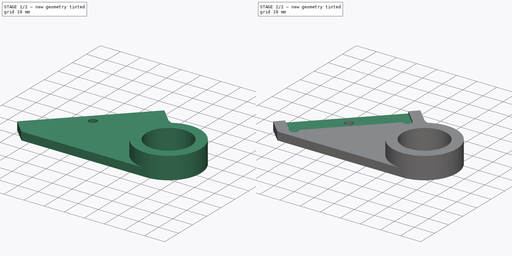
[diagram: build sequence overview — one tinted view per stage of 2, left to right]
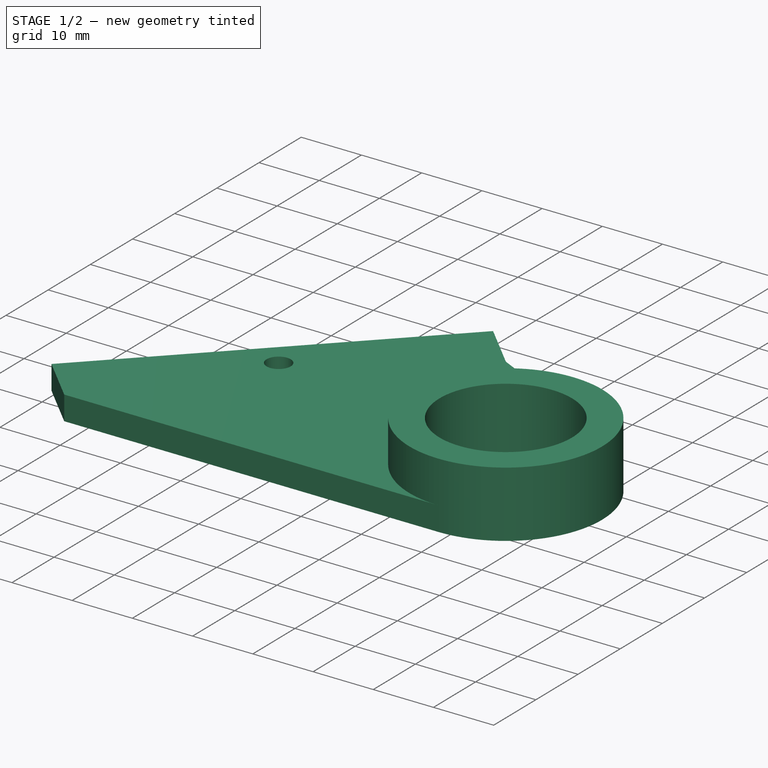
[diagram: stage 1 of 2 — iso view after this stage's code; geometry added in this stage tinted green]
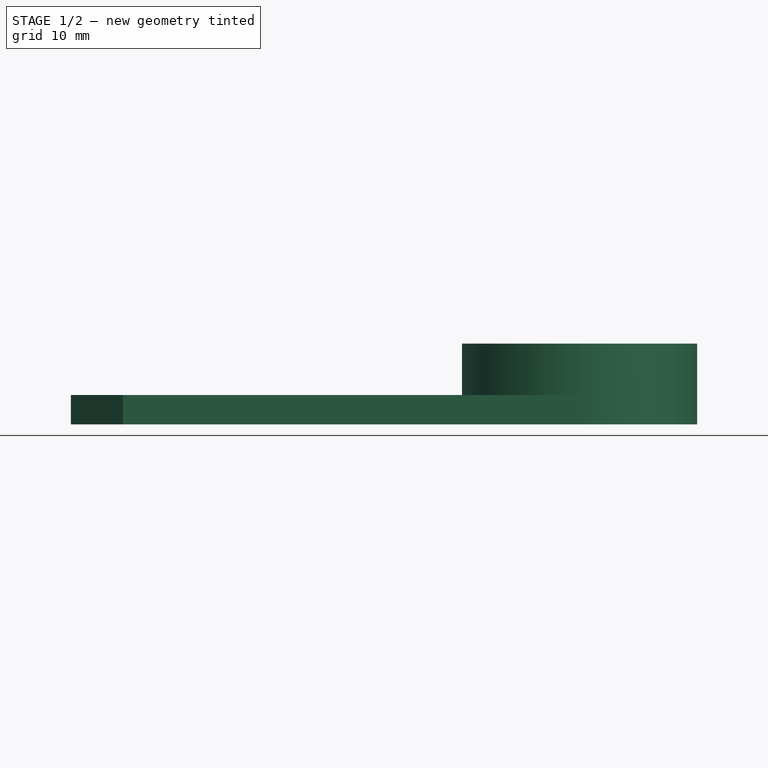
[diagram: stage 1 of 2 — front view after this stage's code; geometry added in this stage tinted green]
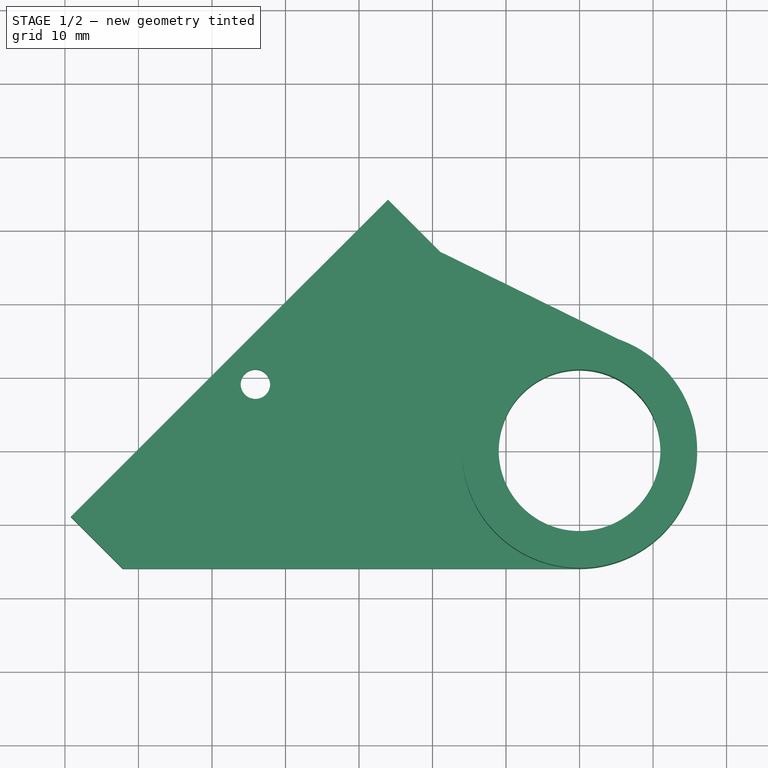
[diagram: stage 1 of 2 — top view after this stage's code; geometry added in this stage tinted green]
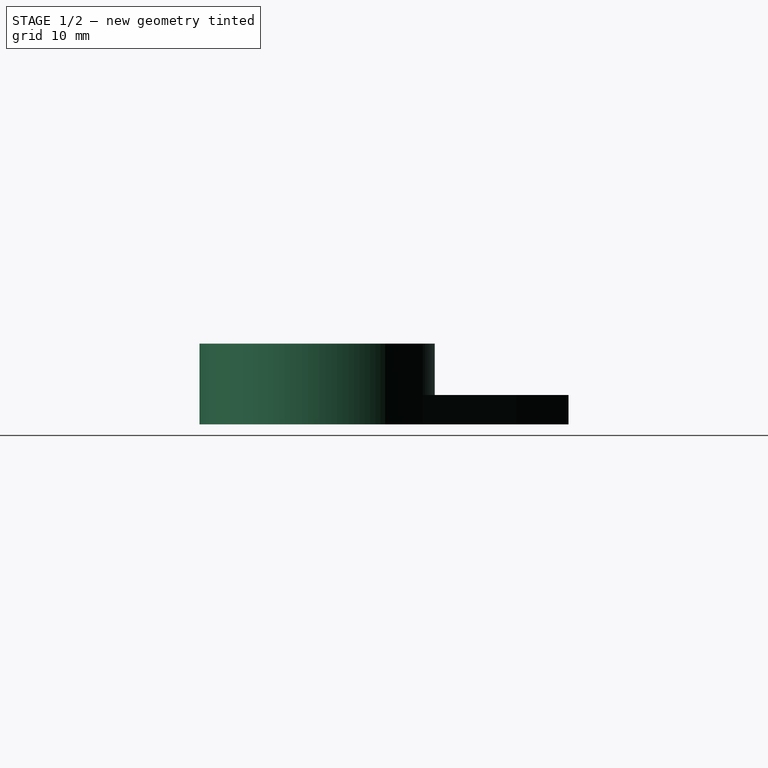
[diagram: stage 1 of 2 — right view after this stage's code; geometry added in this stage tinted green]
FCSTD DOCUMENT  (FreeCAD 0.16R6712 (Git))
Label: aiming-shutter
License: All rights reserved
LicenseURL: http://en.wikipedia.org/wiki/All_rights_reserved
objects: Sketcher::SketchObject×3, PartDesign::Pocket×2, Path::FeaturePython×2, PartDesign::Pad×1
note: 9 computed .brp shape members not serialized (recipe doc carries the construction recipe); baked Part::Feature solids carry a one-line shape summary decoded from their .brp

FEATURE [Sketcher::SketchObject] Sketch  label="mirror-base"
  sketch-geometry (12):
    g0: LineSegment StartX=5e-12 StartY=-16 StartZ=0 EndX=-62.1229 EndY=-16 EndZ=0
    g1: LineSegment StartX=-62.1229 StartY=-16 StartZ=0 EndX=-69.1939 EndY=-8.92893 EndZ=0
    g2: LineSegment StartX=-69.1939 StartY=-8.92893 StartZ=0 EndX=-26.0604 EndY=34.2046 EndZ=0
    g3: LineSegment StartX=-26.0604 StartY=34.2046 StartZ=0 EndX=-18.9894 EndY=27.1335 EndZ=0
    g4: LineSegment StartX=-18.9894 StartY=27.1335 StartZ=0 EndX=7.04521 EndY=14.3654 EndZ=0
    g5: ArcOfCircle CenterX=0 CenterY=0 CenterZ=0 NormalX=0 NormalY=0 NormalZ=1 Radius=16 StartAngle=4.71239 EndAngle=7.39802
    g6: Circle CenterX=0 CenterY=0 CenterZ=0 NormalX=0 NormalY=0 NormalZ=1 Radius=11
    g7: Circle CenterX=-44.0917 CenterY=9.10229 CenterZ=0 NormalX=0 NormalY=0 NormalZ=1 Radius=2
    g8: LineSegment [constr] StartX=-61.734 StartY=8.78409 StartZ=0 EndX=-43.7735 EndY=26.7446 EndZ=0
    g9: LineSegment [constr] StartX=-44.0917 StartY=9.10229 StartZ=0 EndX=-52.7537 EndY=17.7643 EndZ=0
    g10: LineSegment [constr] StartX=-150 StartY=17.6138 StartZ=0 EndX=50 EndY=17.6138 EndZ=0
    g11: LineSegment [constr] StartX=20.7745 StartY=45.6842 StartZ=0 EndX=-64.0783 EndY=-39.1686 EndZ=0
  constraints (38):
    c: Horizontal(g0)
    c: Coincident(g0,g1)
    c: Coincident(g1,g2)
    c: Coincident(g2,g3)
    c: Coincident(g3,g4)
    c: Coincident(g5,g4)
    c: Coincident(g5,g0)
    c: Tangent(g4,g5) = 1.5708
    c: Perpendicular(g1,g2)
    c: Perpendicular(g2,g3)
    c: Equal(g1,g3)
    c: DistanceX(g-1,g0) = 0
    c: Angle(g0,g1) = 2.35619
    c: Distance(g2) = 61
    c: Distance(g1) = 10
    c: Radius(g6) = 11
    c: Radius(g5) = 16
    c: Radius(g7) = 2
    c: Distance(g7,g2) = 5
    c: Distance(g7,g1) = 30.5
    c: Angle(g8,g2) = 0
    c: Distance(g8) = 25.4
    c: Distance(g7,g8) = 12.25
    c: Coincident(g9,g7)
    c: PointOnObject(g9,g8)
    c: Perpendicular(g2,g9)
    c: Distance(g9,g8) = 12.7
    c: Horizontal(g10)
    c: DistanceX(g-1,g10) = 50
    c: Distance(g-1,g10) = 17.6138
    c: Distance(g10) = 200
    c: Angle(g10,g11) = 0.785398
    c: Distance(g-1,g11) = 17.6138
    c: Distance(g11) = 120
    c: DistanceX(g-2,g11) = 20.7745
    c: Distance(g7,g11) = 20
    c: Coincident(g5,g6)
    c: Coincident(g5,g-1)
FEATURE [PartDesign::Pad] Pad
  Length = 11
  Length2 = 100
  Sketch = -> Sketch
  Type = 0
FEATURE [Sketcher::SketchObject] Sketch002  label="fat"
  ExternalGeometry = -> [Pad]
  Placement = pos=(0,0,11) rot=(0,0,1;0rad)
  Support = -> Pad [Face10]
  sketch-geometry (6):
    g0: LineSegment StartX=7.04521 StartY=14.3654 StartZ=0 EndX=-18.9894 EndY=27.1335 EndZ=0
    g1: LineSegment StartX=-18.9894 StartY=27.1335 StartZ=0 EndX=-26.0604 EndY=34.2046 EndZ=0
    g2: LineSegment StartX=-26.0604 StartY=34.2046 StartZ=0 EndX=-69.1939 EndY=-8.92893 EndZ=0
    g3: LineSegment StartX=-69.1939 StartY=-8.92893 StartZ=0 EndX=-62.1229 EndY=-16 EndZ=0
    g4: LineSegment StartX=-62.1229 StartY=-16 StartZ=0 EndX=5e-12 EndY=-16 EndZ=0
    g5: ArcOfCircle CenterX=0 CenterY=0 CenterZ=0 NormalX=0 NormalY=0 NormalZ=1 Radius=16 StartAngle=1.11484 EndAngle=4.71239
  constraints (14):
    c: Coincident(g0,g1)
    c: Coincident(g0,g-4)
    c: Coincident(g1,g2)
    c: Coincident(g1,g-5)
    c: Coincident(g2,g3)
    c: Coincident(g2,g-6)
    c: Coincident(g3,g4)
    c: Coincident(g3,g-7)
    c: Coincident(g5,g-1)
    c: Coincident(g5,g4)
    c: Coincident(g5,g0)
    c: Coincident(g0,g-8)
    c: Coincident(g4,g-8)
    c: Coincident(g4,g-7)
FEATURE [PartDesign::Pocket] Pocket
  Length = 7
  Sketch = -> Sketch002
  Type = 0
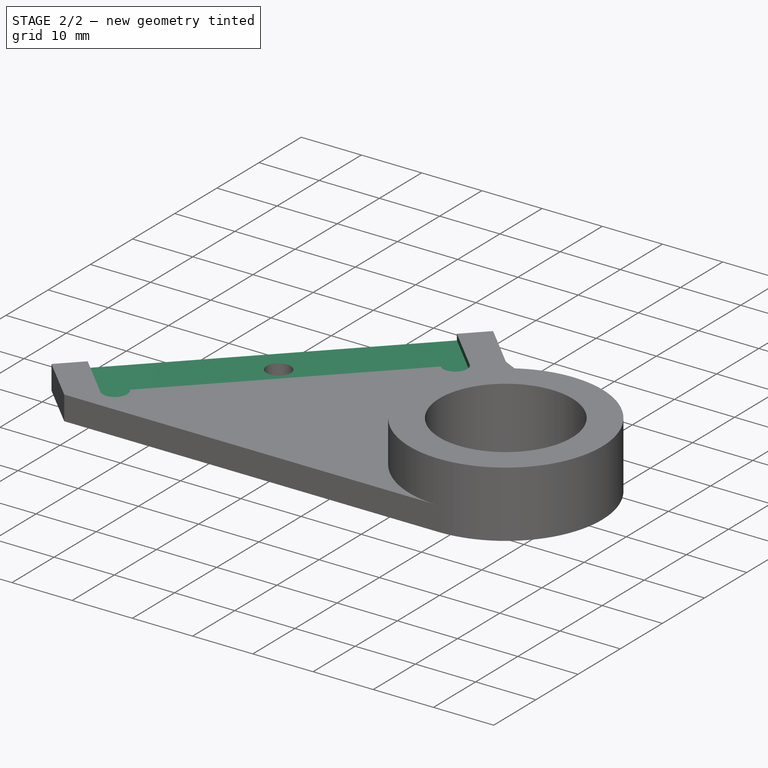
[diagram: stage 2 of 2 — iso view after this stage's code; geometry added in this stage tinted green]
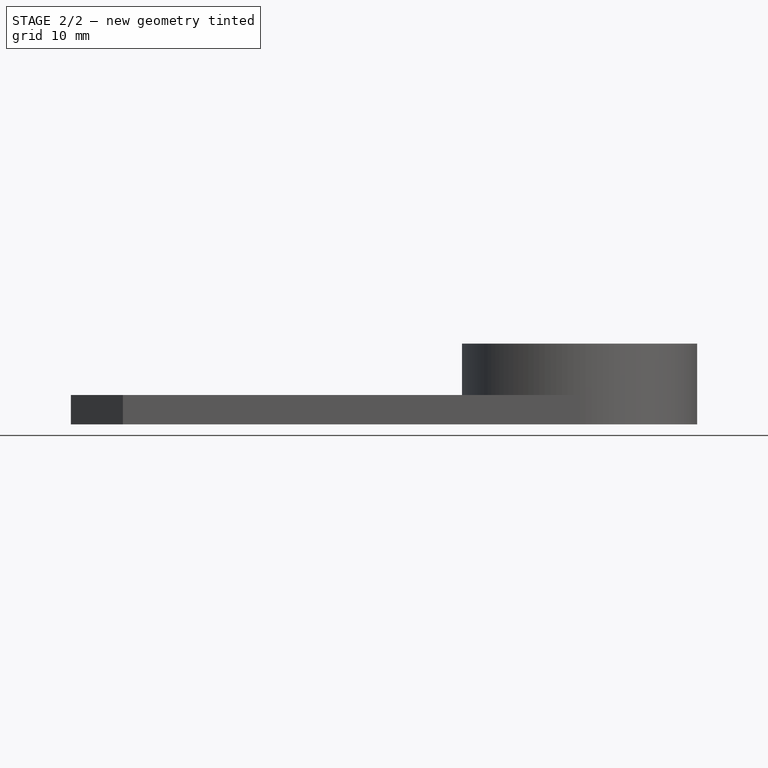
[diagram: stage 2 of 2 — front view after this stage's code; geometry added in this stage tinted green]
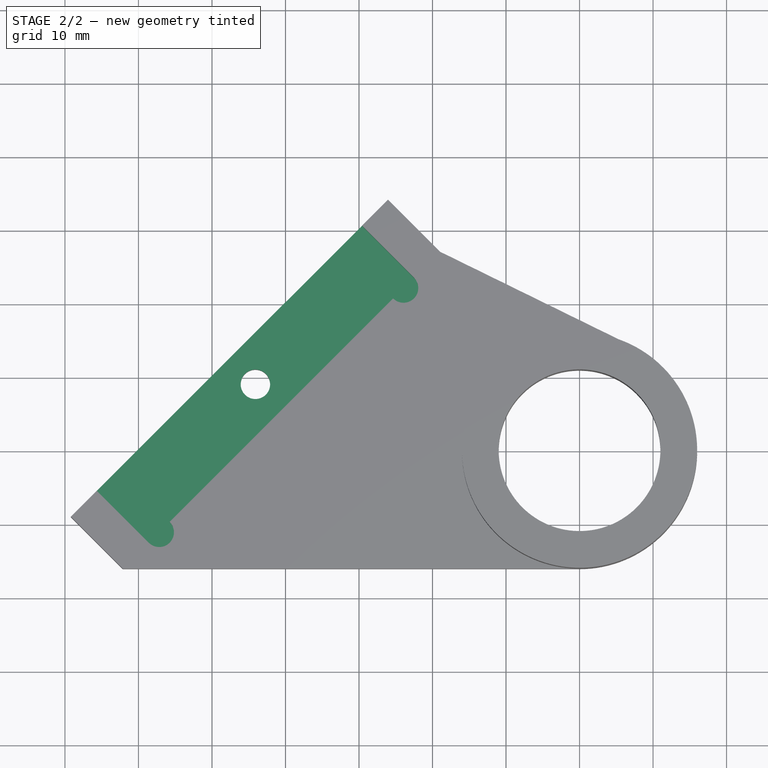
[diagram: stage 2 of 2 — top view after this stage's code; geometry added in this stage tinted green]
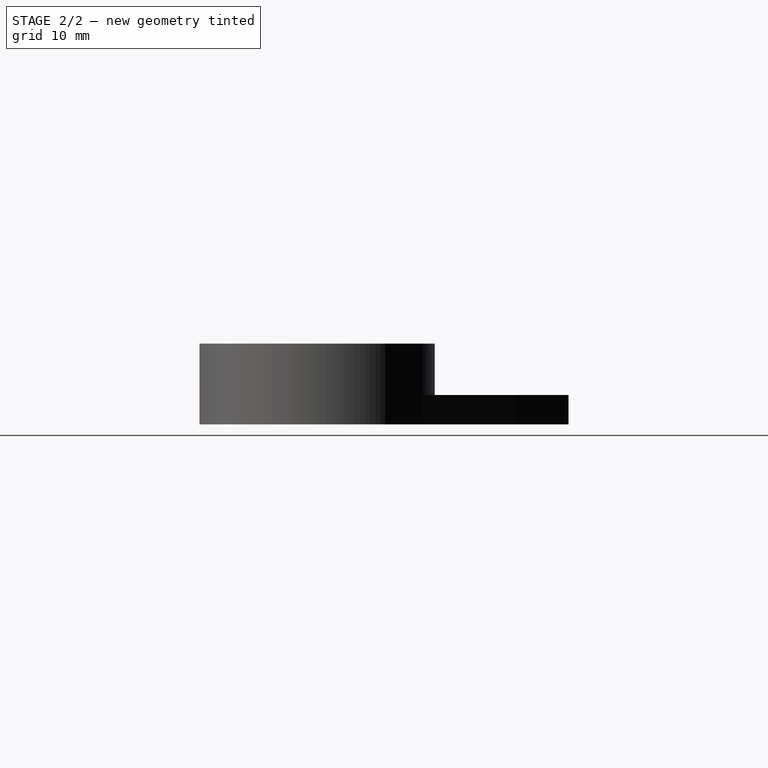
[diagram: stage 2 of 2 — right view after this stage's code; geometry added in this stage tinted green]
FEATURE [Sketcher::SketchObject] Sketch003  label="holder"
  ExternalGeometry = -> [Pocket]
  Placement = pos=(0,0,4) rot=(0,0,1;0rad)
  Support = -> Pocket [Face4]
  sketch-geometry (6):
    g0: LineSegment StartX=-65.6584 StartY=-5.3934 StartZ=0 EndX=-58.5873 EndY=-12.4645 EndZ=0
    g1: LineSegment StartX=-29.596 StartY=30.669 StartZ=0 EndX=-22.5249 EndY=23.598 EndZ=0
    g2: LineSegment StartX=-25.3533 StartY=20.7696 StartZ=0 EndX=-55.7589 EndY=-9.63604 EndZ=0
    g3: ArcOfCircle CenterX=-23.9391 CenterY=22.1838 CenterZ=0 NormalX=0 NormalY=0 NormalZ=1 Radius=2 StartAngle=3.92699 EndAngle=7.06858
    g4: ArcOfCircle CenterX=-57.1731 CenterY=-11.0503 CenterZ=0 NormalX=0 NormalY=0 NormalZ=1 Radius=2 StartAngle=3.92699 EndAngle=7.06858
    g5: LineSegment StartX=-65.6584 StartY=-5.3934 StartZ=0 EndX=-29.596 EndY=30.669 EndZ=0
  constraints (20):
    c: Perpendicular(g-3,g0)
    c: Perpendicular(g-3,g1)
    c: Coincident(g3,g2)
    c: Coincident(g3,g1)
    c: Radius(g3) = 2
    c: Angle(g3) = 3.14159
    c: Distance(g0) = 10
    c: Coincident(g4,g2)
    c: Coincident(g4,g0)
    c: Radius(g4) = 2
    c: Distance(g-4,g0) = 25.5
    c: Angle(g4) = 3.14159
    c: Distance(g-4,g1) = 25.5
    c: Coincident(g5,g1)
    c: Coincident(g0,g5)
    c: Distance(g-4,g5) = 5
    c: Parallel(g5,g-3)
    c: Parallel(g2,g-3)
    c: Distance(g2,g-3) = 10
    c: Distance(g1) = 10
FEATURE [PartDesign::Pocket] Pocket001
  Length = 1
  Sketch = -> Sketch003
  Type = 0
FEATURE [Path::FeaturePython] Machine  label="Machine_"  # Path/CAM operation (typed FeaturePython)
  MachineUnits = 0
  X = 0
  X_Max = 0
  X_Min = 0
  Y = 0
  Y_Max = 0
  Y_Min = 0
  Z = 0
  Z_Max = 0
  Z_Min = 0
FEATURE [Path::FeaturePython] Tool  label="Tool1"  # Path/CAM operation (typed FeaturePython)
  SpindleDir = 0
  SpindleSpeed = 20000
  ToolNumber = 1
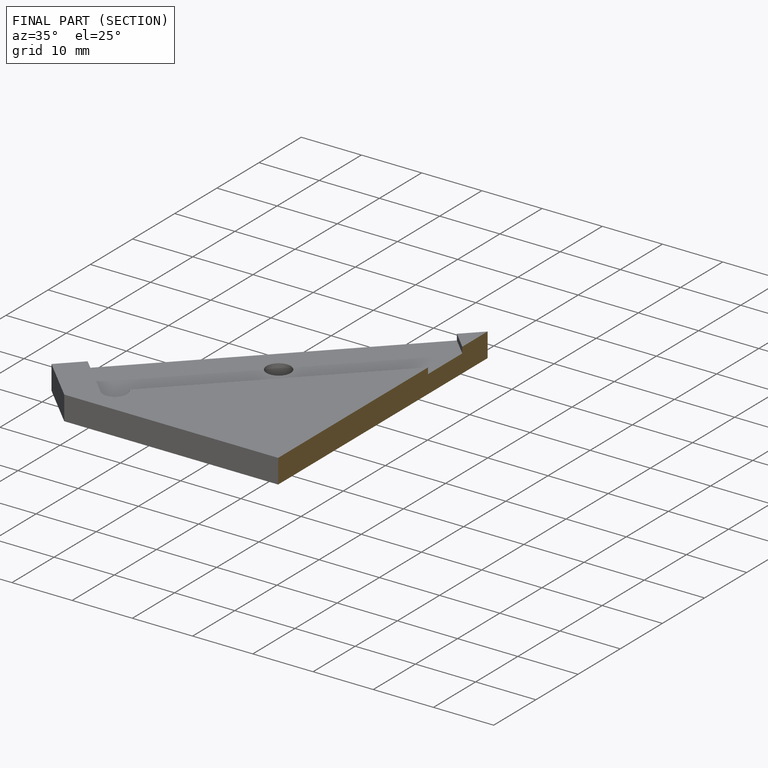
[diagram: finished part — half-section view (interior)]
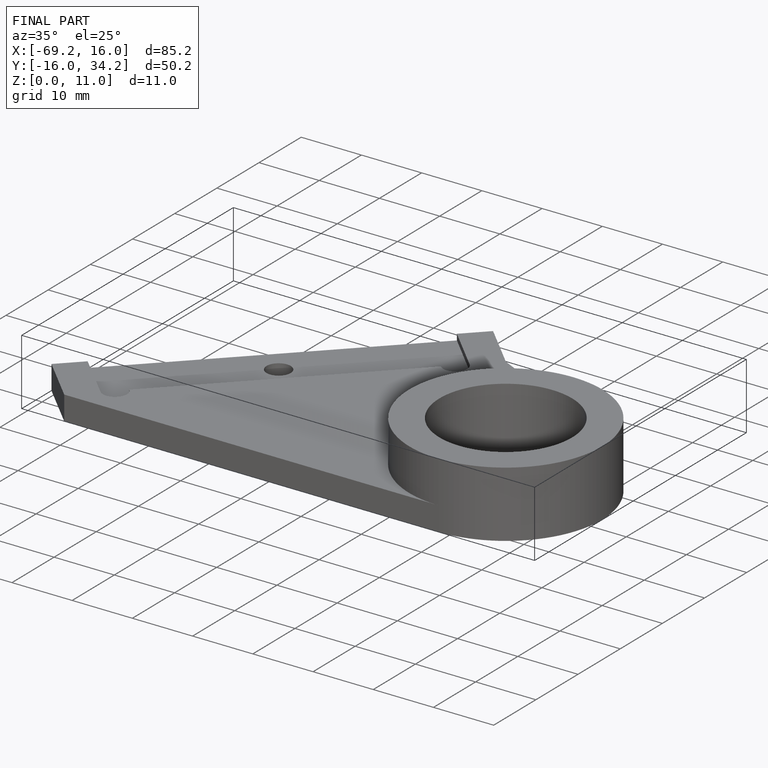
[diagram: finished part — iso view with bounding-box wireframe]
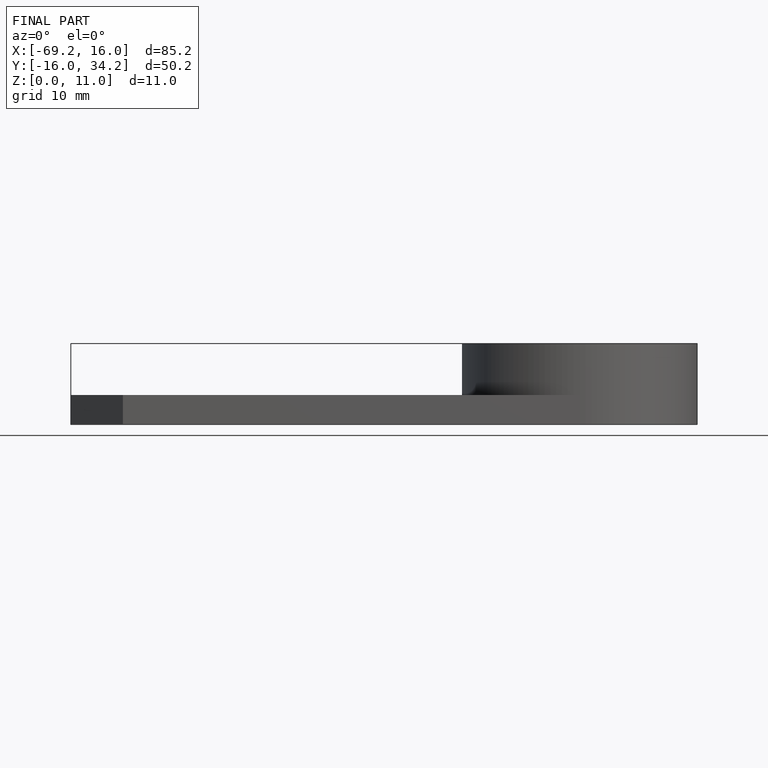
[diagram: finished part — front view with bounding-box wireframe]
